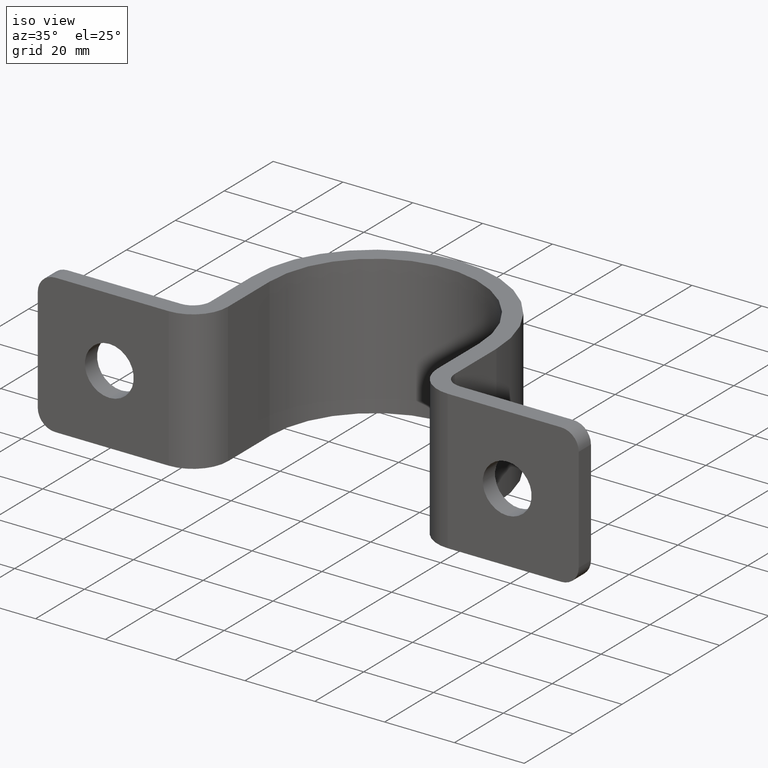
[diagram: clean part render]
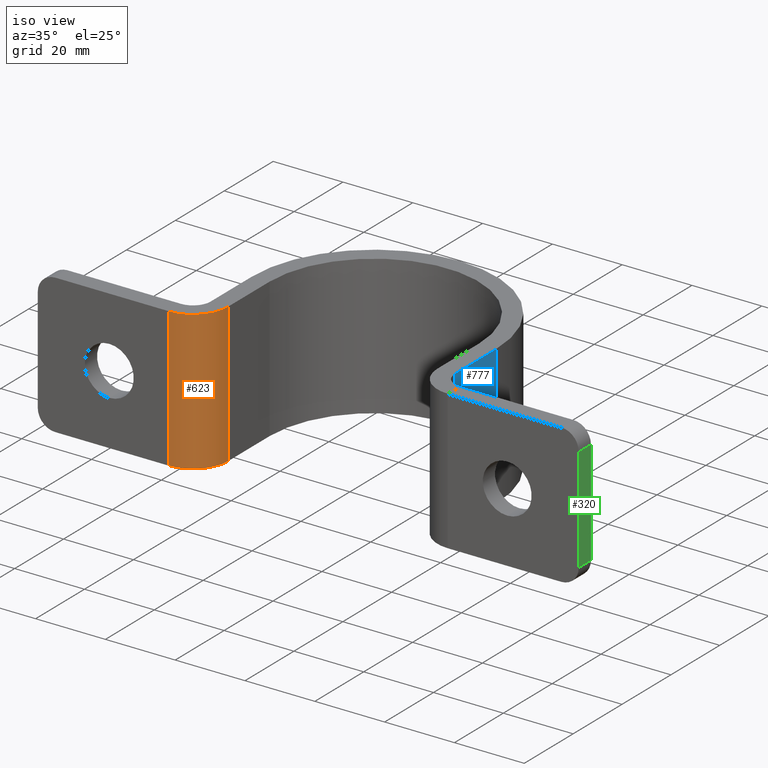
[diagram: same view with three faces highlighted in distinct colors, each labeled with its STEP entity id]
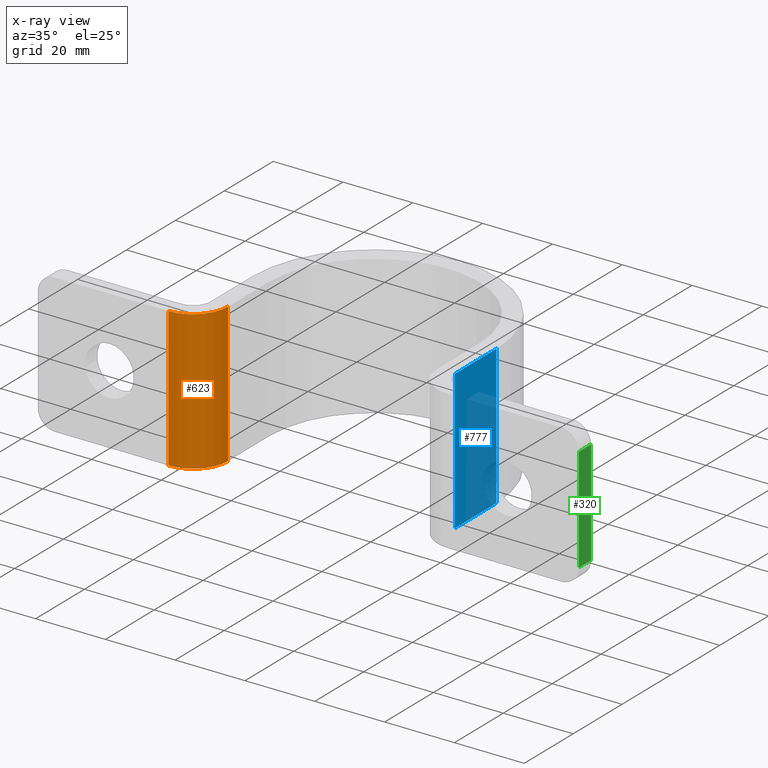
[diagram: x-ray of the same camera — body ghosted, the three highlighted faces saturated]
A machine part, iso view with three faces highlighted in distinct colors.
The next image is the same camera in x-ray (body ghosted, the three faces saturated) — at least one of them is partly hidden behind the body in this view.
Their STEP definitions:

[orange] entity #623 — the highlighted cylindrical surface (partial cylindrical patch) has radius 10 mm, axis along (-0, -0, -1).
#4 = EDGE_CURVE ( 'NONE', #734, #502, #496, .T. ) ;
#36 = EDGE_CURVE ( 'NONE', #731, #734, #617, .T. ) ;
#69 = CARTESIAN_POINT ( 'NONE',  ( -40.00000000000000000, 2.999999999999980016, -20.00000000000000000 ) ) ;
#73 = CARTESIAN_POINT ( 'NONE',  ( -40.00000000000000000, 12.99999999999998046, 20.00000000000000000 ) ) ;
#81 = EDGE_CURVE ( 'NONE', #731, #133, #1087, .T. ) ;
#93 = CARTESIAN_POINT ( 'NONE',  ( -30.00000000000000000, 12.99999999999998046, -20.00000000000000000 ) ) ;
#118 = DIRECTION ( 'NONE',  ( -1.000000000000000000, 0.000000000000000000, 0.000000000000000000 ) ) ;
#133 = VERTEX_POINT ( 'NONE', #69 ) ;
#178 = CARTESIAN_POINT ( 'NONE',  ( -30.00000000000000000, 12.99999999999998046, 20.00000000000000000 ) ) ;
#199 = DIRECTION ( 'NONE',  ( -0.000000000000000000, -0.000000000000000000, -1.000000000000000000 ) ) ;
#316 = DIRECTION ( 'NONE',  ( -0.000000000000000000, -0.000000000000000000, -1.000000000000000000 ) ) ;
#323 = ORIENTED_EDGE ( 'NONE', *, *, #36, .F. ) ;
#349 = CIRCLE ( 'NONE', #937, 10.00000000000000178 ) ;
#462 = CARTESIAN_POINT ( 'NONE',  ( -40.00000000000000000, 2.999999999999980016, 20.00000000000000000 ) ) ;
#482 = DIRECTION ( 'NONE',  ( -0.000000000000000000, -0.000000000000000000, -1.000000000000000000 ) ) ;
#496 = LINE ( 'NONE', #1009, #525 ) ;
#502 = VERTEX_POINT ( 'NONE', #93 ) ;
#525 = VECTOR ( 'NONE', #316, 1000.000000000000000 ) ;
#554 = VECTOR ( 'NONE', #482, 1000.000000000000000 ) ;
#576 = ORIENTED_EDGE ( 'NONE', *, *, #648, .T. ) ;
#614 = CYLINDRICAL_SURFACE ( 'NONE', #664, 10.00000000000000178 ) ;
#617 = CIRCLE ( 'NONE', #1105, 10.00000000000000178 ) ;
#623 = ADVANCED_FACE ( 'NONE', ( #705 ), #614, .T. ) ;
#643 = EDGE_LOOP ( 'NONE', ( #576, #952, #323, #743 ) ) ;
#648 = EDGE_CURVE ( 'NONE', #133, #502, #349, .T. ) ;
#664 = AXIS2_PLACEMENT_3D ( 'NONE', #1070, #199, #891 ) ;
#705 = FACE_OUTER_BOUND ( 'NONE', #643, .T. ) ;
#731 = VERTEX_POINT ( 'NONE', #462 ) ;
#734 = VERTEX_POINT ( 'NONE', #178 ) ;
#743 = ORIENTED_EDGE ( 'NONE', *, *, #81, .T. ) ;
#801 = CARTESIAN_POINT ( 'NONE',  ( -40.00000000000000000, 12.99999999999998046, -20.00000000000000000 ) ) ;
#836 = DIRECTION ( 'NONE',  ( -0.000000000000000000, -0.000000000000000000, 1.000000000000000000 ) ) ;
#891 = DIRECTION ( 'NONE',  ( -1.000000000000000000, 0.000000000000000000, 0.000000000000000000 ) ) ;
#898 = DIRECTION ( 'NONE',  ( -0.000000000000000000, -0.000000000000000000, 1.000000000000000000 ) ) ;
#937 = AXIS2_PLACEMENT_3D ( 'NONE', #801, #898, #118 ) ;
#952 = ORIENTED_EDGE ( 'NONE', *, *, #4, .F. ) ;
#1009 = CARTESIAN_POINT ( 'NONE',  ( -30.00000000000000000, 12.99999999999998046, 20.00000000000000000 ) ) ;
#1018 = CARTESIAN_POINT ( 'NONE',  ( -40.00000000000000000, 2.999999999999980016, 20.00000000000000000 ) ) ;
#1070 = CARTESIAN_POINT ( 'NONE',  ( -40.00000000000000000, 12.99999999999998046, 20.00000000000000000 ) ) ;
#1087 = LINE ( 'NONE', #1018, #554 ) ;
#1103 = DIRECTION ( 'NONE',  ( -1.000000000000000000, 0.000000000000000000, 0.000000000000000000 ) ) ;
#1105 = AXIS2_PLACEMENT_3D ( 'NONE', #73, #836, #1103 ) ;

[blue] entity #777 — the highlighted planar face has unit normal (1, 0, -0).
#8 = ORIENTED_EDGE ( 'NONE', *, *, #376, .F. ) ;
#20 = FACE_OUTER_BOUND ( 'NONE', #1000, .T. ) ;
#32 = AXIS2_PLACEMENT_3D ( 'NONE', #722, #1045, #544 ) ;
#55 = VERTEX_POINT ( 'NONE', #328 ) ;
#113 = CARTESIAN_POINT ( 'NONE',  ( 34.99999999999999289, 30.00000000000000355, 20.00000000000000000 ) ) ;
#119 = DIRECTION ( 'NONE',  ( -0.000000000000000000, -0.000000000000000000, -1.000000000000000000 ) ) ;
#160 = LINE ( 'NONE', #171, #478 ) ;
#169 = ORIENTED_EDGE ( 'NONE', *, *, #354, .T. ) ;
#171 = CARTESIAN_POINT ( 'NONE',  ( 35.00000000000000000, 12.99999999999999112, 20.00000000000000000 ) ) ;
#222 = EDGE_CURVE ( 'NONE', #789, #240, #160, .T. ) ;
#240 = VERTEX_POINT ( 'NONE', #523 ) ;
#300 = LINE ( 'NONE', #113, #1094 ) ;
#308 = ORIENTED_EDGE ( 'NONE', *, *, #467, .F. ) ;
#328 = CARTESIAN_POINT ( 'NONE',  ( 34.99999999999999289, 30.00000000000000355, -20.00000000000000000 ) ) ;
#352 = CARTESIAN_POINT ( 'NONE',  ( 34.99999999999999289, 30.00000000000000000, -20.00000000000000000 ) ) ;
#354 = EDGE_CURVE ( 'NONE', #415, #789, #641, .T. ) ;
#376 = EDGE_CURVE ( 'NONE', #415, #55, #300, .T. ) ;
#415 = VERTEX_POINT ( 'NONE', #1065 ) ;
#467 = EDGE_CURVE ( 'NONE', #55, #240, #880, .T. ) ;
#470 = ORIENTED_EDGE ( 'NONE', *, *, #222, .T. ) ;
#478 = VECTOR ( 'NONE', #1050, 1000.000000000000000 ) ;
#523 = CARTESIAN_POINT ( 'NONE',  ( 35.00000000000000000, 12.99999999999999112, -20.00000000000000000 ) ) ;
#543 = DIRECTION ( 'NONE',  ( -0.000000000000000000, -1.000000000000000000, 0.000000000000000000 ) ) ;
#544 = DIRECTION ( 'NONE',  ( -0.000000000000000000, 0.000000000000000000, -1.000000000000000000 ) ) ;
#611 = DIRECTION ( 'NONE',  ( -0.000000000000000000, -1.000000000000000000, 0.000000000000000000 ) ) ;
#641 = LINE ( 'NONE', #892, #922 ) ;
#707 = PLANE ( 'NONE',  #32 ) ;
#720 = VECTOR ( 'NONE', #611, 1000.000000000000000 ) ;
#722 = CARTESIAN_POINT ( 'NONE',  ( 34.99999999999999289, 30.00000000000000000, 20.00000000000000000 ) ) ;
#777 = ADVANCED_FACE ( 'NONE', ( #20 ), #707, .T. ) ;
#789 = VERTEX_POINT ( 'NONE', #1066 ) ;
#880 = LINE ( 'NONE', #352, #720 ) ;
#892 = CARTESIAN_POINT ( 'NONE',  ( 34.99999999999999289, 30.00000000000000000, 20.00000000000000000 ) ) ;
#922 = VECTOR ( 'NONE', #543, 1000.000000000000000 ) ;
#1000 = EDGE_LOOP ( 'NONE', ( #308, #8, #169, #470 ) ) ;
#1045 = DIRECTION ( 'NONE',  ( 1.000000000000000000, 0.000000000000000000, -0.000000000000000000 ) ) ;
#1050 = DIRECTION ( 'NONE',  ( -0.000000000000000000, -0.000000000000000000, -1.000000000000000000 ) ) ;
#1065 = CARTESIAN_POINT ( 'NONE',  ( 34.99999999999999289, 30.00000000000000355, 20.00000000000000000 ) ) ;
#1066 = CARTESIAN_POINT ( 'NONE',  ( 35.00000000000000000, 12.99999999999999112, 20.00000000000000000 ) ) ;
#1094 = VECTOR ( 'NONE', #119, 1000.000000000000000 ) ;

[green] entity #320 — the highlighted planar face has unit normal (1, 0, -0).
#34 = LINE ( 'NONE', #291, #988 ) ;
#92 = ORIENTED_EDGE ( 'NONE', *, *, #820, .T. ) ;
#132 = DIRECTION ( 'NONE',  ( -0.000000000000000000, -0.000000000000000000, -1.000000000000000000 ) ) ;
#194 = DIRECTION ( 'NONE',  ( -0.000000000000000000, 0.000000000000000000, -1.000000000000000000 ) ) ;
#201 = DIRECTION ( 'NONE',  ( 0.000000000000000000, -1.000000000000000000, 0.000000000000000000 ) ) ;
#255 = VECTOR ( 'NONE', #132, 1000.000000000000000 ) ;
#278 = CARTESIAN_POINT ( 'NONE',  ( 77.50000000000000000, 3.000000000000021760, 15.00000000000000000 ) ) ;
#280 = AXIS2_PLACEMENT_3D ( 'NONE', #981, #802, #194 ) ;
#291 = CARTESIAN_POINT ( 'NONE',  ( 77.50000000000000000, 8.000000000000021316, 15.00000000000000000 ) ) ;
#320 = ADVANCED_FACE ( 'NONE', ( #714 ), #884, .T. ) ;
#362 = DIRECTION ( 'NONE',  ( -0.000000000000000000, -0.000000000000000000, -1.000000000000000000 ) ) ;
#377 = VERTEX_POINT ( 'NONE', #384 ) ;
#384 = CARTESIAN_POINT ( 'NONE',  ( 77.50000000000000000, 8.000000000000021316, -15.00000000000000355 ) ) ;
#411 = ORIENTED_EDGE ( 'NONE', *, *, #585, .F. ) ;
#435 = VERTEX_POINT ( 'NONE', #728 ) ;
#449 = LINE ( 'NONE', #798, #255 ) ;
#497 = LINE ( 'NONE', #774, #1107 ) ;
#583 = DIRECTION ( 'NONE',  ( -0.000000000000000000, 1.000000000000000000, -0.000000000000000000 ) ) ;
#585 = EDGE_CURVE ( 'NONE', #853, #377, #449, .T. ) ;
#600 = EDGE_CURVE ( 'NONE', #970, #435, #633, .T. ) ;
#633 = LINE ( 'NONE', #816, #1042 ) ;
#653 = ORIENTED_EDGE ( 'NONE', *, *, #1035, .T. ) ;
#714 = FACE_OUTER_BOUND ( 'NONE', #887, .T. ) ;
#728 = CARTESIAN_POINT ( 'NONE',  ( 77.50000000000000000, 3.000000000000021760, -15.00000000000000355 ) ) ;
#772 = CARTESIAN_POINT ( 'NONE',  ( 77.50000000000000000, 8.000000000000021316, 15.00000000000000000 ) ) ;
#774 = CARTESIAN_POINT ( 'NONE',  ( 77.50000000000000000, 8.000000000000021316, -15.00000000000000355 ) ) ;
#798 = CARTESIAN_POINT ( 'NONE',  ( 77.50000000000000000, 8.000000000000021316, 20.00000000000000000 ) ) ;
#802 = DIRECTION ( 'NONE',  ( 1.000000000000000000, 0.000000000000000000, -0.000000000000000000 ) ) ;
#816 = CARTESIAN_POINT ( 'NONE',  ( 77.50000000000000000, 3.000000000000021760, 20.00000000000000000 ) ) ;
#820 = EDGE_CURVE ( 'NONE', #853, #970, #34, .T. ) ;
#853 = VERTEX_POINT ( 'NONE', #772 ) ;
#861 = ORIENTED_EDGE ( 'NONE', *, *, #600, .T. ) ;
#884 = PLANE ( 'NONE',  #280 ) ;
#887 = EDGE_LOOP ( 'NONE', ( #861, #653, #411, #92 ) ) ;
#970 = VERTEX_POINT ( 'NONE', #278 ) ;
#981 = CARTESIAN_POINT ( 'NONE',  ( 77.50000000000000000, 8.000000000000021316, 20.00000000000000000 ) ) ;
#988 = VECTOR ( 'NONE', #201, 1000.000000000000000 ) ;
#1035 = EDGE_CURVE ( 'NONE', #435, #377, #497, .T. ) ;
#1042 = VECTOR ( 'NONE', #362, 1000.000000000000000 ) ;
#1107 = VECTOR ( 'NONE', #583, 1000.000000000000000 ) ;